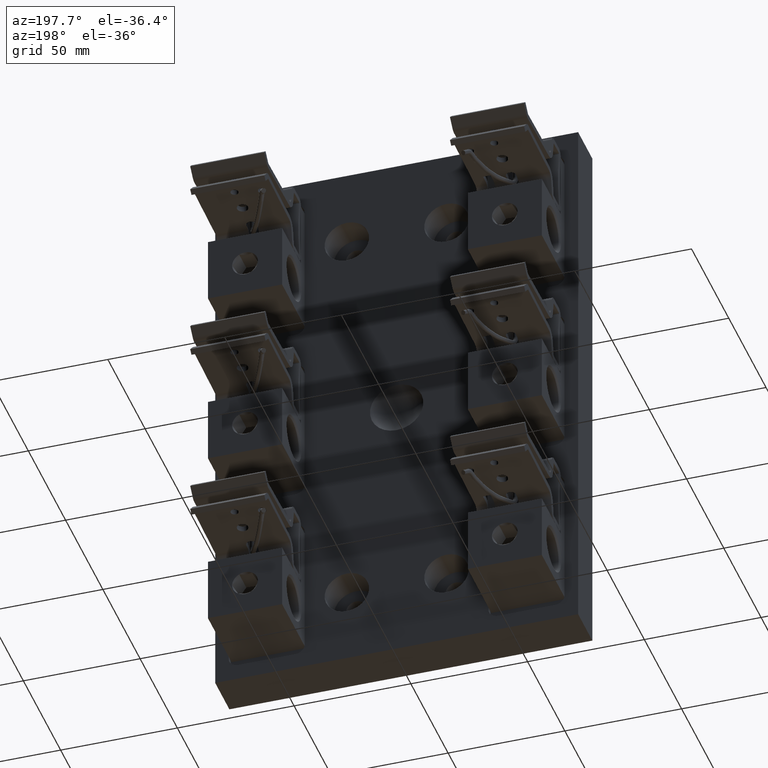
[diagram: clean part render]
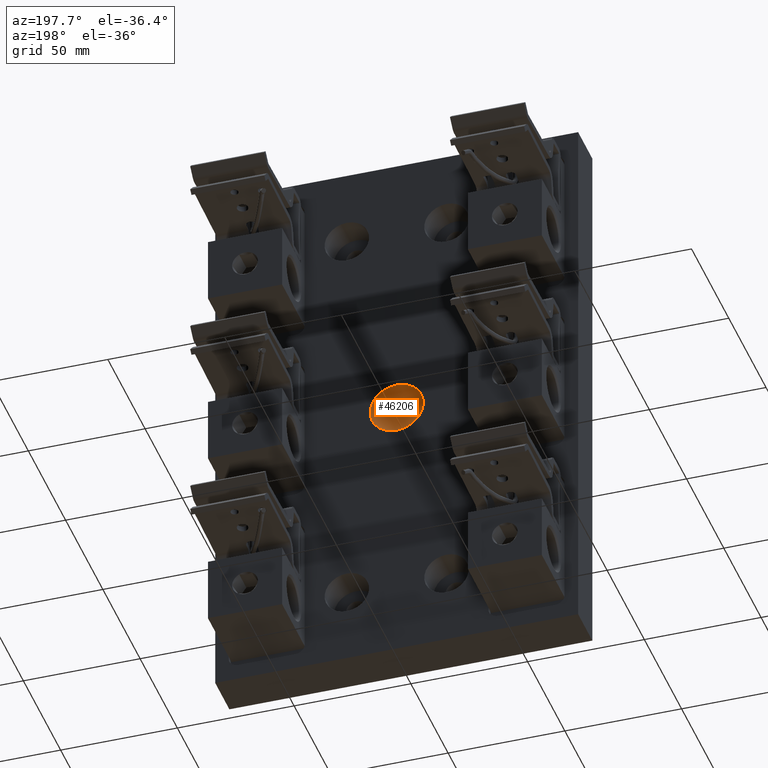
[diagram: same view with one face highlighted and labeled with its STEP entity id]
A machine part, auxiliary view. The second image highlights one B-rep face of the part: STEP entity #46206.
In plain terms, the highlighted spherical surface has radius 19.05 mm.
Its self-contained STEP definition (entity closure, byte-faithful):
#1716 = DIRECTION ( 'NONE',  ( 0.0000000000000000000, 0.0000000000000000000, -1.000000000000000000 ) ) ;
#2253 = CIRCLE ( 'NONE', #41520, 0.4500000000000001200 ) ;
#4507 = CARTESIAN_POINT ( 'NONE',  ( 0.0000000000000000000, 0.7500000000000001100, -0.4500000000000001200 ) ) ;
#8540 = FACE_OUTER_BOUND ( 'NONE', #43153, .T. ) ;
#11336 = VERTEX_POINT ( 'NONE', #4507 ) ;
#22567 = DIRECTION ( 'NONE',  ( -1.000000000000000000, -0.0000000000000000000, 0.0000000000000000000 ) ) ;
#28255 = DIRECTION ( 'NONE',  ( -0.0000000000000000000, -1.000000000000000000, -0.0000000000000000000 ) ) ;
#31327 = CARTESIAN_POINT ( 'NONE',  ( 0.0000000000000000000, 1.350000000000000100, 0.0000000000000000000 ) ) ;
#39305 = ORIENTED_EDGE ( 'NONE', *, *, #40832, .F. ) ;
#40832 = EDGE_CURVE ( 'NONE', #11336, #11336, #2253, .T. ) ;
#41520 = AXIS2_PLACEMENT_3D ( 'NONE', #54935, #28255, #1716 ) ;
#42804 = AXIS2_PLACEMENT_3D ( 'NONE', #31327, #22567, #53717 ) ;
#43153 = EDGE_LOOP ( 'NONE', ( #39305 ) ) ;
#46206 = ADVANCED_FACE ( 'NONE', ( #8540 ), #48821, .F. ) ;
#48821 = SPHERICAL_SURFACE ( 'NONE', #42804, 0.7500000000000001100 ) ;
#53717 = DIRECTION ( 'NONE',  ( 0.0000000000000000000, 0.0000000000000000000, 1.000000000000000000 ) ) ;
#54935 = CARTESIAN_POINT ( 'NONE',  ( 0.0000000000000000000, 0.7500000000000001100, 0.0000000000000000000 ) ) ;